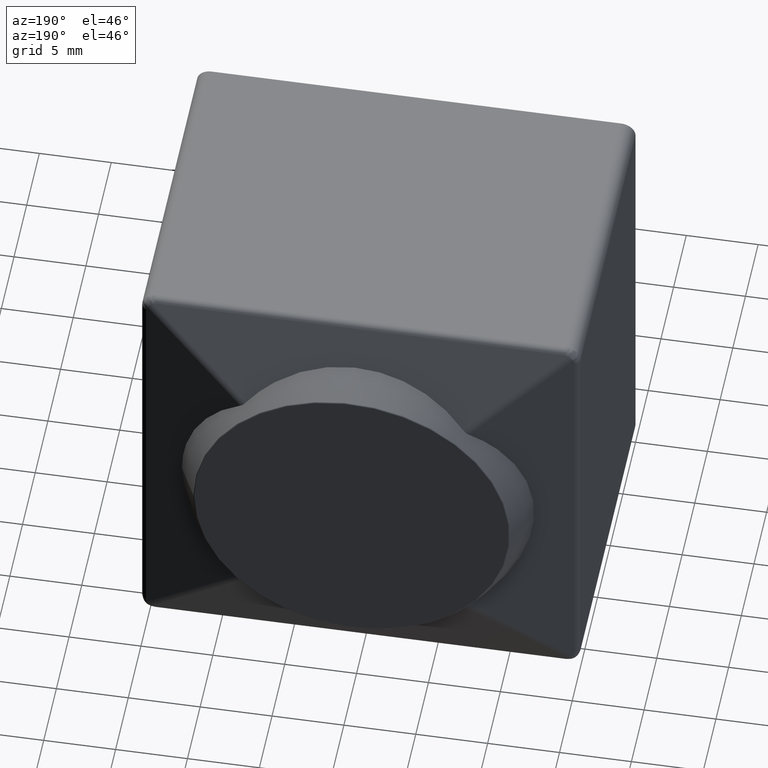
[diagram: clean part render]
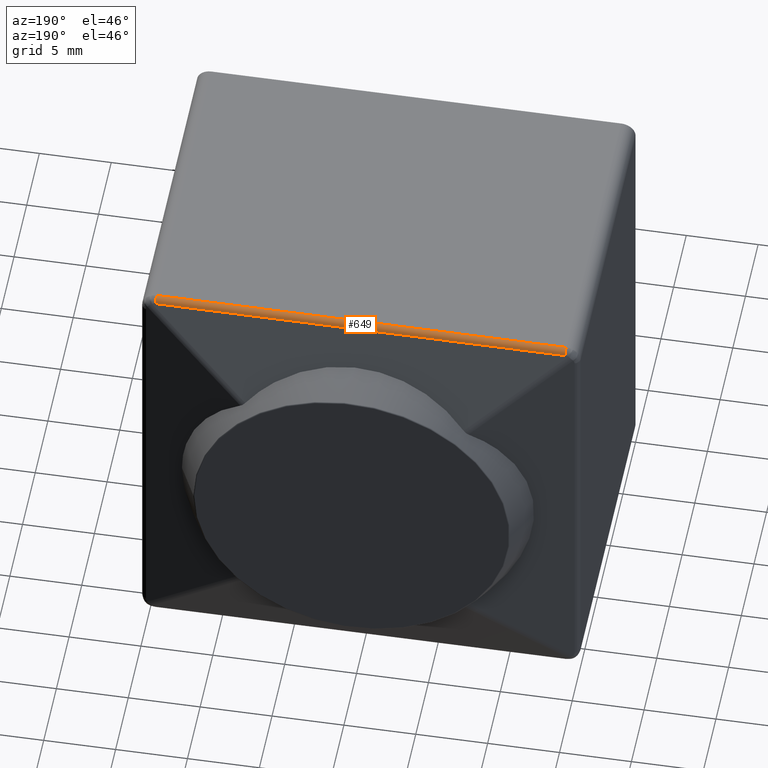
[diagram: same view with one face highlighted and labeled with its STEP entity id]
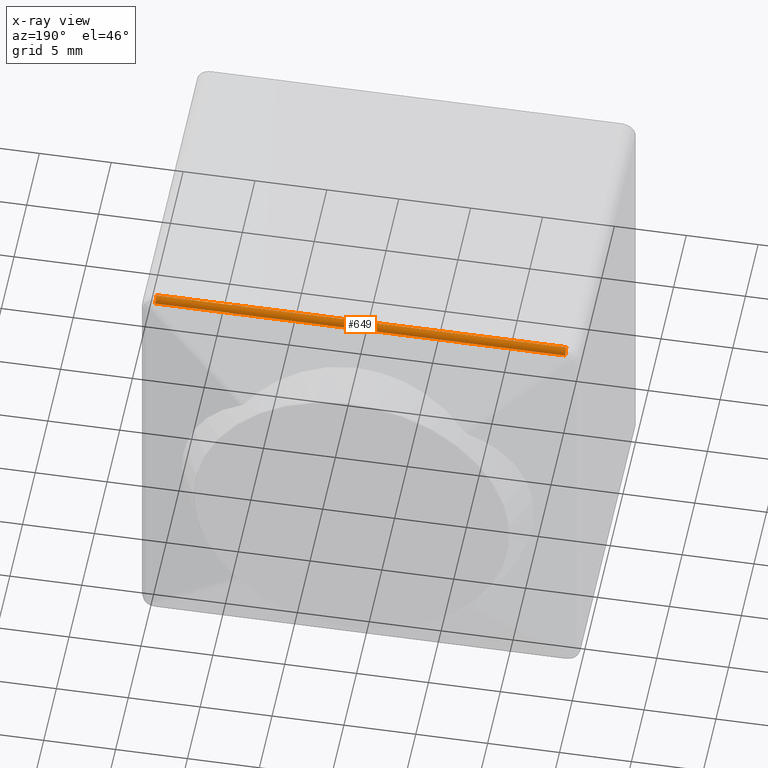
[diagram: x-ray of the same camera — body ghosted, the highlighted face saturated]
A machine part, auxiliary view. The second image highlights one B-rep face of the part: STEP entity #649.
The next image is the same camera in x-ray: the body ghosted, the highlighted face saturated — about 0% of this face is hidden behind the body in this view.
In plain terms, the highlighted cylindrical surface (edge-blend (fillet) strip) has radius 0.5 mm, axis along (-1, 0, 0).
Its self-contained STEP definition (entity closure, byte-faithful):
#23=CYLINDRICAL_SURFACE('',#717,0.5);
#88=CIRCLE('',#705,0.499999999999994);
#93=CIRCLE('',#718,0.5);
#129=FACE_OUTER_BOUND('',#173,.T.);
#173=EDGE_LOOP('',(#557,#558,#559,#560));
#215=LINE('',#1284,#255);
#217=LINE('',#1288,#257);
#255=VECTOR('',#878,28.5);
#257=VECTOR('',#882,28.5);
#305=VERTEX_POINT('',#1211);
#306=VERTEX_POINT('',#1212);
#313=VERTEX_POINT('',#1283);
#314=VERTEX_POINT('',#1287);
#383=EDGE_CURVE('',#305,#306,#88,.T.);
#397=EDGE_CURVE('',#313,#306,#215,.T.);
#399=EDGE_CURVE('',#305,#314,#217,.T.);
#400=EDGE_CURVE('',#313,#314,#93,.T.);
#557=ORIENTED_EDGE('',*,*,#383,.F.);
#558=ORIENTED_EDGE('',*,*,#399,.T.);
#559=ORIENTED_EDGE('',*,*,#400,.F.);
#560=ORIENTED_EDGE('',*,*,#397,.T.);
#649=ADVANCED_FACE('',(#129),#23,.T.);
#705=AXIS2_PLACEMENT_3D('',#1213,#850,#851);
#717=AXIS2_PLACEMENT_3D('',#1286,#880,#881);
#718=AXIS2_PLACEMENT_3D('',#1289,#883,#884);
#850=DIRECTION('center_axis',(1.,0.,0.));
#851=DIRECTION('ref_axis',(0.,0.937748760723702,0.347314355823598));
#878=DIRECTION('',(1.,0.,0.));
#880=DIRECTION('center_axis',(-1.,0.,0.));
#881=DIRECTION('ref_axis',(0.,0.571264231409774,0.82076621391953));
#882=DIRECTION('',(-1.,0.,0.));
#883=DIRECTION('center_axis',(-1.,0.,0.));
#884=DIRECTION('ref_axis',(0.,0.,1.));
#1211=CARTESIAN_POINT('',(29.5,22.1208677118845,14.9236571779118));
#1212=CARTESIAN_POINT('',(29.5,21.6519933315227,15.25));
#1213=CARTESIAN_POINT('Origin',(29.5,21.6519933315227,14.75));
#1283=CARTESIAN_POINT('',(1.,21.6519933315227,15.25));
#1284=CARTESIAN_POINT('',(7.625,21.6519933315227,15.25));
#1286=CARTESIAN_POINT('Origin',(7.625,21.6519933315227,14.75));
#1287=CARTESIAN_POINT('',(1.,22.1208677118845,14.9236571779118));
#1288=CARTESIAN_POINT('',(7.625,22.1208677118845,14.9236571779118));
#1289=CARTESIAN_POINT('Origin',(1.,21.6519933315227,14.75));